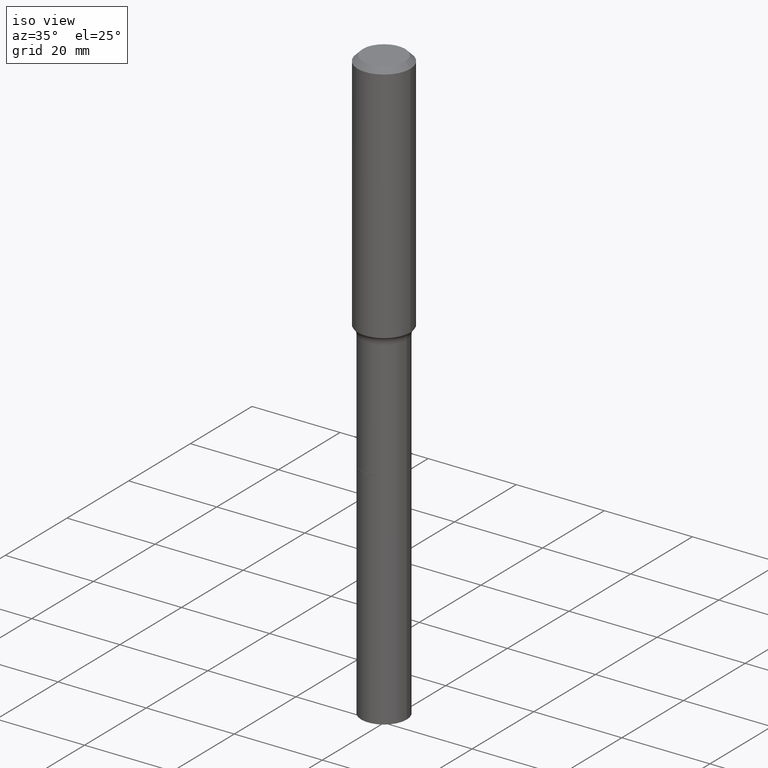
[diagram: clean part render]
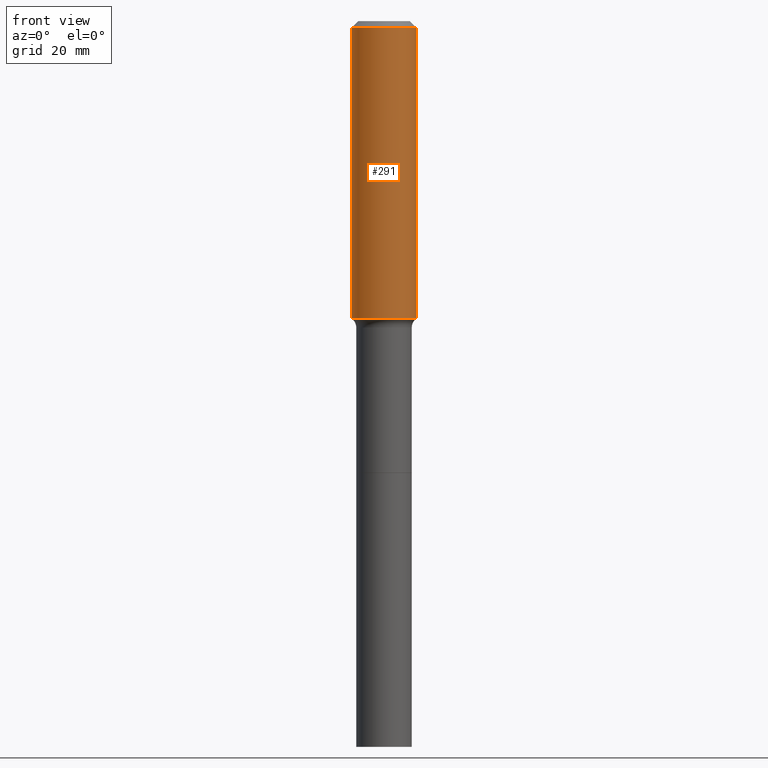
[diagram: tour spotlight — one face highlighted and labeled with its STEP entity id]
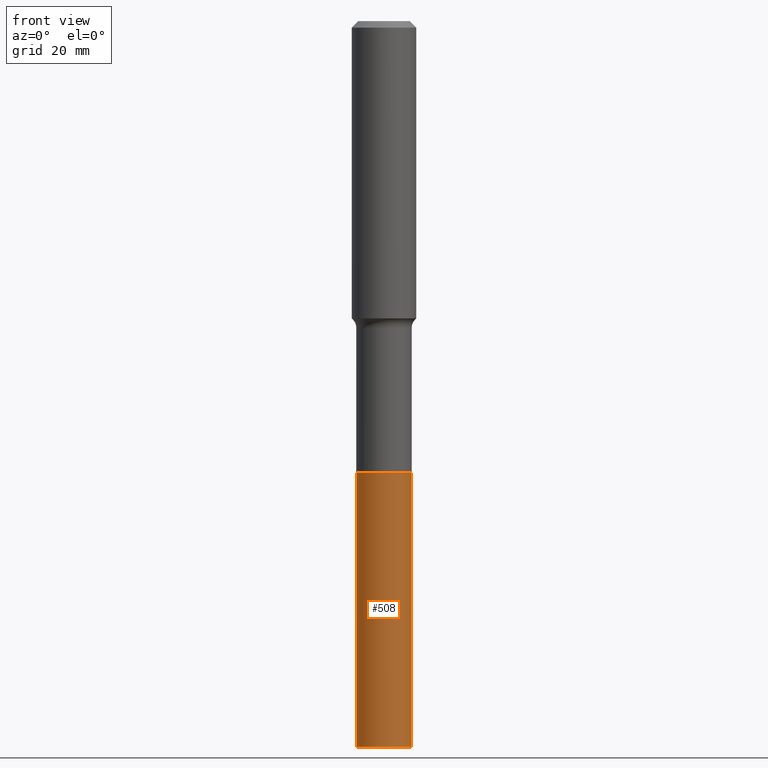
[diagram: tour spotlight — one face highlighted and labeled with its STEP entity id]
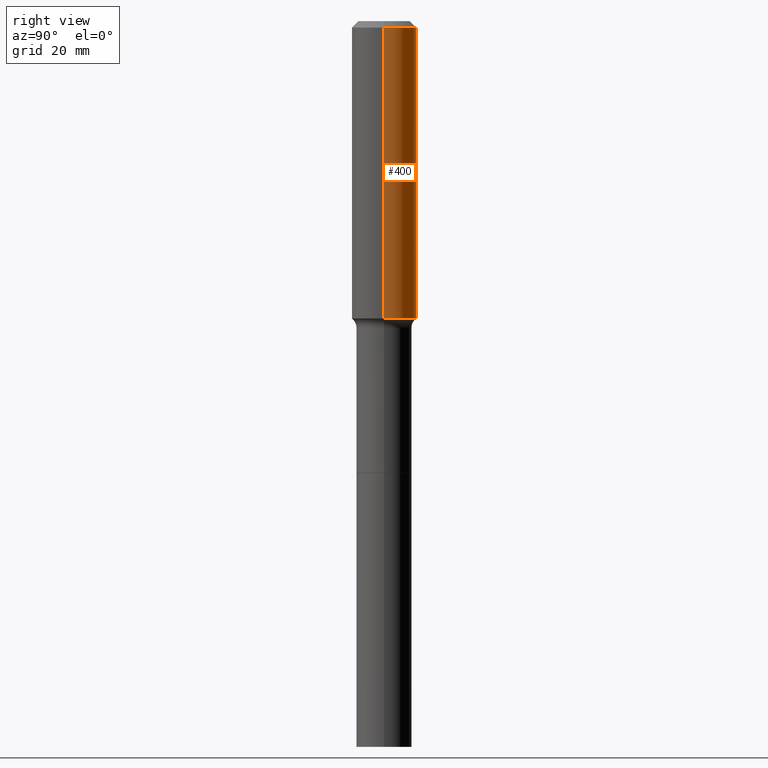
[diagram: tour spotlight — one face highlighted and labeled with its STEP entity id]
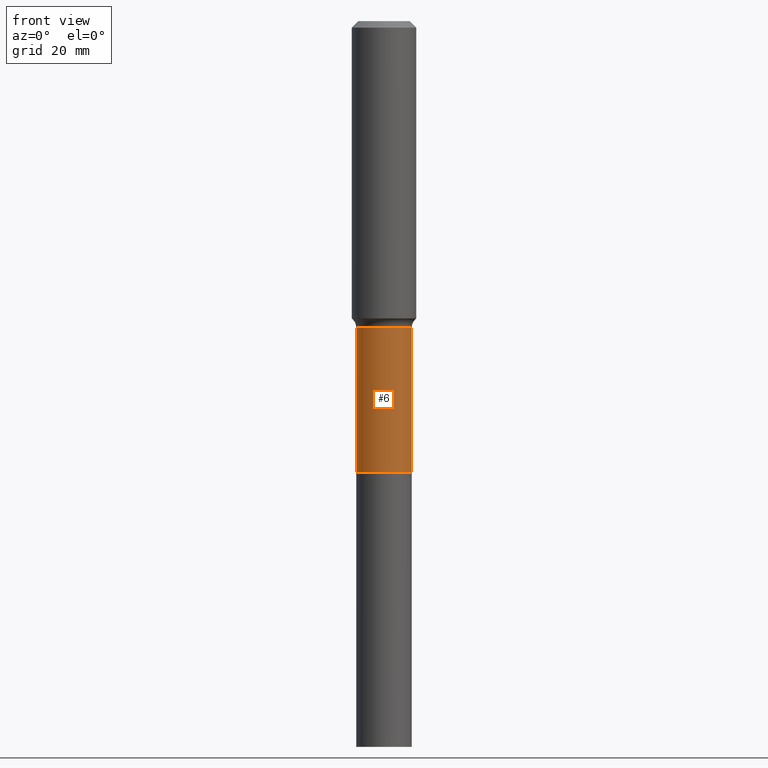
[diagram: tour spotlight — one face highlighted and labeled with its STEP entity id]
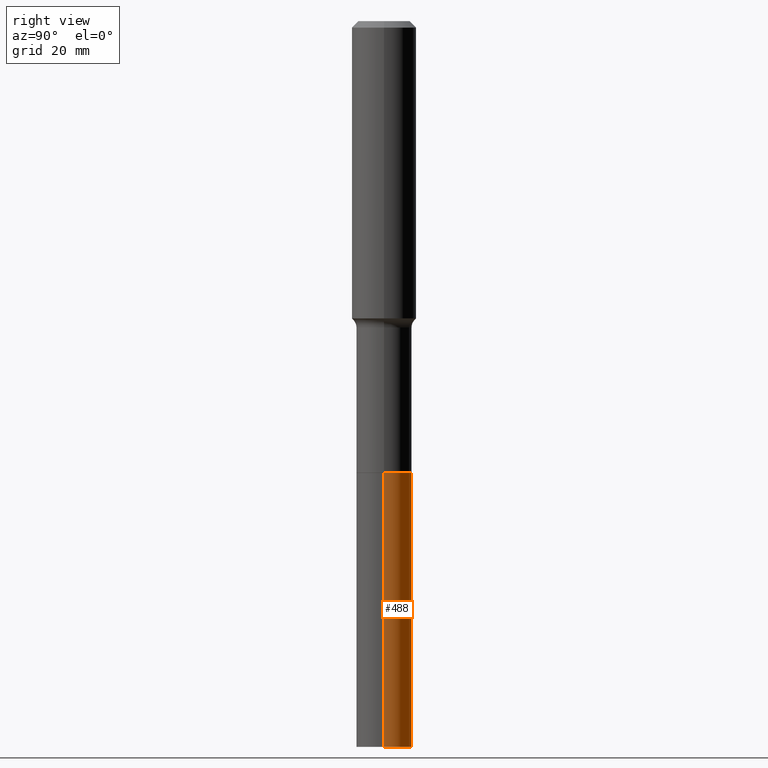
[diagram: tour spotlight — one face highlighted and labeled with its STEP entity id]
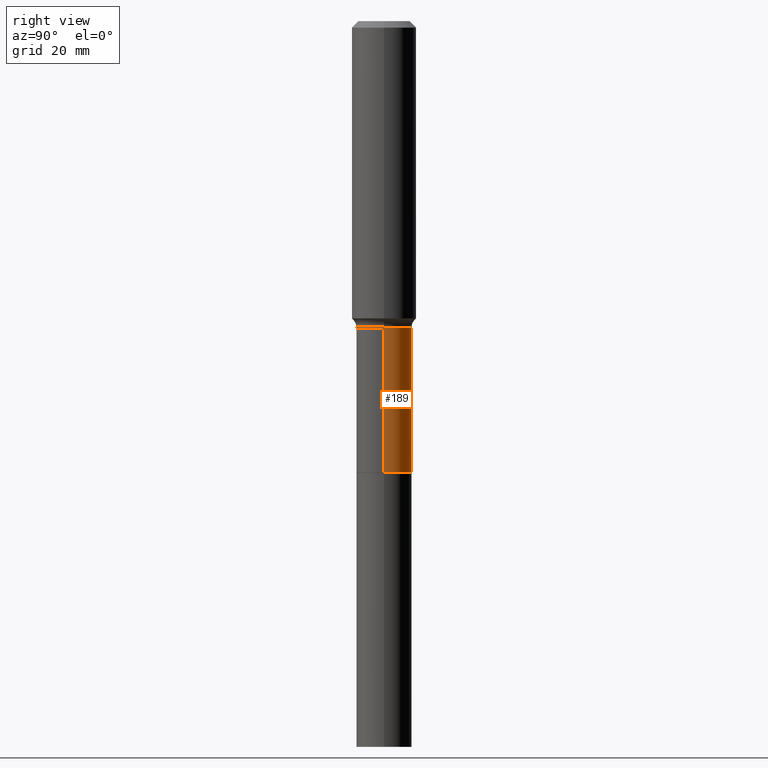
[diagram: tour spotlight — one face highlighted and labeled with its STEP entity id]
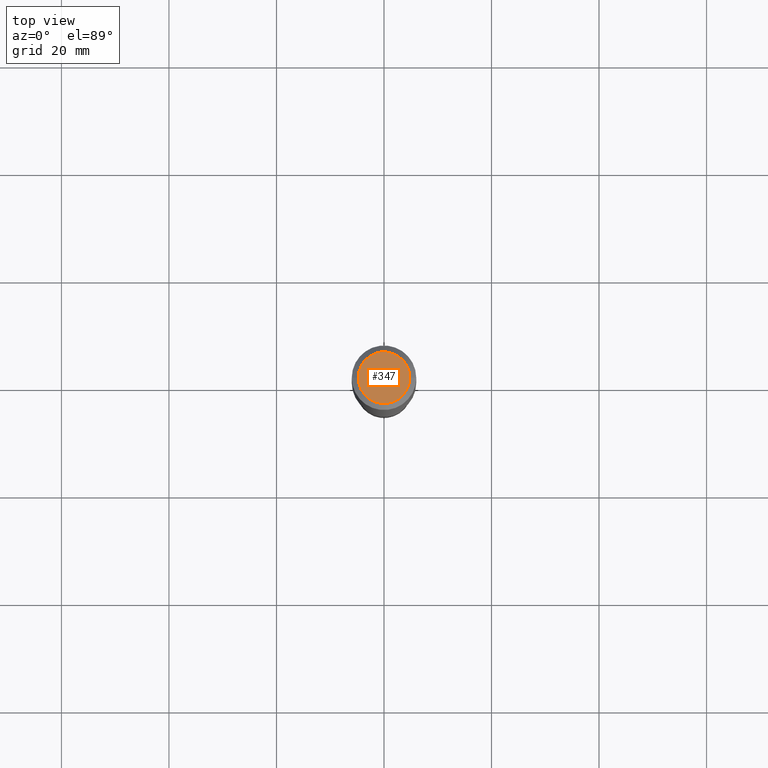
[diagram: tour spotlight — one face highlighted and labeled with its STEP entity id]
A machine part: a face-by-face anatomy tour. The part has 18 B-rep faces; the first image is the clean iso view, then the 7 largest visible faces are spotlighted one at a time (largest first), each with its STEP entity span.

Face 1 — front view, entity #291. In plain terms, the highlighted cylindrical surface (edge-blend (fillet) strip) has radius 5.9995 mm, axis along (-0, 0, 1).
Definition (entity closure, byte-faithful):
#17 = FACE_OUTER_BOUND ( 'NONE', #31, .T. ) ;
#31 = EDGE_LOOP ( 'NONE', ( #297, #210, #415, #454 ) ) ;
#52 = AXIS2_PLACEMENT_3D ( 'NONE', #322, #192, #356 ) ;
#67 = EDGE_CURVE ( 'NONE', #499, #251, #267, .T. ) ;
#74 = EDGE_CURVE ( 'NONE', #383, #324, #390, .T. ) ;
#78 = CARTESIAN_POINT ( 'NONE',  ( -0.2362000000000001321, 1.678301941865357577E-15, -1.161852468318209457E-29 ) ) ;
#97 = CARTESIAN_POINT ( 'NONE',  ( 0.2361999999999999933, -1.814313362916447440E-15, -0.04724000000000030258 ) ) ;
#113 = AXIS2_PLACEMENT_3D ( 'NONE', #186, #177, #511 ) ;
#120 = EDGE_CURVE ( 'NONE', #324, #251, #280, .T. ) ;
#122 = VECTOR ( 'NONE', #227, 39.37007874015748143 ) ;
#134 = VECTOR ( 'NONE', #442, 39.37007874015748143 ) ;
#156 = DIRECTION ( 'NONE',  ( 1.000000000000000000, -6.982962677686266711E-15, 4.876176775795936353E-29 ) ) ;
#177 = DIRECTION ( 'NONE',  ( -2.445468806185136597E-29, 3.491481338843145583E-15, 1.000000000000000000 ) ) ;
#186 = CARTESIAN_POINT ( 'NONE',  ( 1.155239464041865857E-30, -1.649375784469512352E-16, -0.04724000000000030258 ) ) ;
#192 = DIRECTION ( 'NONE',  ( -2.445468806185136597E-29, 3.491481338843145583E-15, 1.000000000000000000 ) ) ;
#210 = ORIENTED_EDGE ( 'NONE', *, *, #308, .T. ) ;
#212 = CYLINDRICAL_SURFACE ( 'NONE', #443, 0.2362000000000001321 ) ;
#227 = DIRECTION ( 'NONE',  ( -2.445468806185136877E-29, 3.491481338843145188E-15, 1.000000000000000000 ) ) ;
#231 = CARTESIAN_POINT ( 'NONE',  ( -0.2361999999999999933, -2.204629895681507301E-15, -0.04724000000000030258 ) ) ;
#251 = VERTEX_POINT ( 'NONE', #97 ) ;
#267 = LINE ( 'NONE', #397, #122 ) ;
#274 = DIRECTION ( 'NONE',  ( -2.445468806185136597E-29, 3.491481338843145583E-15, 1.000000000000000000 ) ) ;
#280 = CIRCLE ( 'NONE', #113, 0.2361999999999999933 ) ;
#291 = ADVANCED_FACE ( 'NONE', ( #17 ), #212, .T. ) ;
#297 = ORIENTED_EDGE ( 'NONE', *, *, #74, .F. ) ;
#308 = EDGE_CURVE ( 'NONE', #383, #499, #333, .T. ) ;
#322 = CARTESIAN_POINT ( 'NONE',  ( 5.323765434652751771E-29, -7.600926096646780419E-15, -2.176991757648987669 ) ) ;
#324 = VERTEX_POINT ( 'NONE', #231 ) ;
#333 = CIRCLE ( 'NONE', #52, 0.2362000000000002709 ) ;
#356 = DIRECTION ( 'NONE',  ( 1.000000000000000000, -6.982962677686269077E-15, 0.000000000000000000 ) ) ;
#377 = CARTESIAN_POINT ( 'NONE',  ( 0.000000000000000000, 0.000000000000000000, 0.000000000000000000 ) ) ;
#383 = VERTEX_POINT ( 'NONE', #453 ) ;
#390 = LINE ( 'NONE', #78, #134 ) ;
#397 = CARTESIAN_POINT ( 'NONE',  ( 0.2362000000000001321, -1.649375784469497117E-15, 1.151752954443000789E-29 ) ) ;
#415 = ORIENTED_EDGE ( 'NONE', *, *, #67, .T. ) ;
#428 = CARTESIAN_POINT ( 'NONE',  ( 0.2362000000000002709, -9.250301881116278522E-15, -2.176991757648987669 ) ) ;
#442 = DIRECTION ( 'NONE',  ( -2.445468806185136877E-29, 3.491481338843145188E-15, 1.000000000000000000 ) ) ;
#443 = AXIS2_PLACEMENT_3D ( 'NONE', #377, #274, #156 ) ;
#453 = CARTESIAN_POINT ( 'NONE',  ( -0.2362000000000002709, -5.922624154781422447E-15, -2.176991757648987669 ) ) ;
#454 = ORIENTED_EDGE ( 'NONE', *, *, #120, .F. ) ;
#499 = VERTEX_POINT ( 'NONE', #428 ) ;
#511 = DIRECTION ( 'NONE',  ( 1.000000000000000000, -6.982962677686266711E-15, 0.000000000000000000 ) ) ;

Face 2 — front view, entity #508. In plain terms, the highlighted cylindrical surface (edge-blend (fillet) strip) has radius 5.1587 mm, axis along (-0, 0, 1).
Definition (entity closure, byte-faithful):
#24 = EDGE_CURVE ( 'NONE', #56, #204, #495, .T. ) ;
#32 = DIRECTION ( 'NONE',  ( -2.445468806185136597E-29, 3.491481338843145583E-15, 1.000000000000000000 ) ) ;
#51 = ORIENTED_EDGE ( 'NONE', *, *, #24, .T. ) ;
#56 = VERTEX_POINT ( 'NONE', #375 ) ;
#57 = CARTESIAN_POINT ( 'NONE',  ( 1.299766670487400218E-28, -1.855722331595131973E-14, -5.315000000000000391 ) ) ;
#89 = ORIENTED_EDGE ( 'NONE', *, *, #487, .F. ) ;
#90 = ORIENTED_EDGE ( 'NONE', *, *, #121, .F. ) ;
#108 = FACE_OUTER_BOUND ( 'NONE', #378, .T. ) ;
#117 = DIRECTION ( 'NONE',  ( 1.000000000000000000, -6.982962677686264344E-15, 0.000000000000000000 ) ) ;
#121 = EDGE_CURVE ( 'NONE', #172, #166, #234, .T. ) ;
#132 = ORIENTED_EDGE ( 'NONE', *, *, #447, .T. ) ;
#133 = AXIS2_PLACEMENT_3D ( 'NONE', #475, #32, #232 ) ;
#146 = LINE ( 'NONE', #355, #418 ) ;
#148 = DIRECTION ( 'NONE',  ( -2.445468806185136877E-29, 3.491481338843145188E-15, 1.000000000000000000 ) ) ;
#151 = AXIS2_PLACEMENT_3D ( 'NONE', #312, #277, #117 ) ;
#159 = CARTESIAN_POINT ( 'NONE',  ( 0.2031000000000000028, -1.296456850739236371E-14, -3.307000000000000384 ) ) ;
#166 = VERTEX_POINT ( 'NONE', #159 ) ;
#172 = VERTEX_POINT ( 'NONE', #474 ) ;
#204 = VERTEX_POINT ( 'NONE', #325 ) ;
#222 = DIRECTION ( 'NONE',  ( 1.000000000000000000, -6.982962677686261977E-15, 0.000000000000000000 ) ) ;
#232 = DIRECTION ( 'NONE',  ( 1.000000000000000000, -6.982962677686267499E-15, 0.000000000000000000 ) ) ;
#234 = CIRCLE ( 'NONE', #151, 0.2031000000000000028 ) ;
#243 = LINE ( 'NONE', #364, #496 ) ;
#269 = CYLINDRICAL_SURFACE ( 'NONE', #133, 0.2031000000000001970 ) ;
#277 = DIRECTION ( 'NONE',  ( -2.445468806185136597E-29, 3.491481338843145583E-15, 1.000000000000000000 ) ) ;
#287 = AXIS2_PLACEMENT_3D ( 'NONE', #57, #461, #222 ) ;
#312 = CARTESIAN_POINT ( 'NONE',  ( 8.087165342054247524E-29, -1.154632878755428372E-14, -3.307000000000000384 ) ) ;
#325 = CARTESIAN_POINT ( 'NONE',  ( 0.2031000000000003636, -1.997546303578940445E-14, -5.315000000000000391 ) ) ;
#355 = CARTESIAN_POINT ( 'NONE',  ( -0.2031000000000001970, -1.010321649122551983E-14, -3.307000000000000384 ) ) ;
#364 = CARTESIAN_POINT ( 'NONE',  ( 0.2031000000000001970, -1.296456850739236686E-14, -3.307000000000000384 ) ) ;
#375 = CARTESIAN_POINT ( 'NONE',  ( -0.2031000000000003636, -1.360866375542403310E-14, -5.315000000000000391 ) ) ;
#378 = EDGE_LOOP ( 'NONE', ( #89, #51, #132, #90 ) ) ;
#418 = VECTOR ( 'NONE', #463, 39.37007874015748143 ) ;
#447 = EDGE_CURVE ( 'NONE', #204, #166, #243, .T. ) ;
#461 = DIRECTION ( 'NONE',  ( -2.445468806185136597E-29, 3.491481338843145583E-15, 1.000000000000000000 ) ) ;
#463 = DIRECTION ( 'NONE',  ( -2.445468806185136877E-29, 3.491481338843145188E-15, 1.000000000000000000 ) ) ;
#474 = CARTESIAN_POINT ( 'NONE',  ( -0.2031000000000000028, -1.360866375542403783E-14, -3.307000000000000384 ) ) ;
#475 = CARTESIAN_POINT ( 'NONE',  ( 8.087165342054247524E-29, -1.154632878755428372E-14, -3.307000000000000384 ) ) ;
#487 = EDGE_CURVE ( 'NONE', #56, #172, #146, .T. ) ;
#495 = CIRCLE ( 'NONE', #287, 0.2031000000000003636 ) ;
#496 = VECTOR ( 'NONE', #148, 39.37007874015748143 ) ;
#508 = ADVANCED_FACE ( 'NONE', ( #108 ), #269, .T. ) ;

Face 3 — right view, entity #400. In plain terms, the highlighted cylindrical surface (edge-blend (fillet) strip) has radius 5.9995 mm, axis along (-0, 0, 1).
Definition (entity closure, byte-faithful):
#67 = EDGE_CURVE ( 'NONE', #499, #251, #267, .T. ) ;
#74 = EDGE_CURVE ( 'NONE', #383, #324, #390, .T. ) ;
#78 = CARTESIAN_POINT ( 'NONE',  ( -0.2362000000000001321, 1.678301941865357577E-15, -1.161852468318209457E-29 ) ) ;
#80 = AXIS2_PLACEMENT_3D ( 'NONE', #440, #124, #441 ) ;
#93 = CIRCLE ( 'NONE', #353, 0.2362000000000002709 ) ;
#97 = CARTESIAN_POINT ( 'NONE',  ( 0.2361999999999999933, -1.814313362916447440E-15, -0.04724000000000030258 ) ) ;
#98 = ORIENTED_EDGE ( 'NONE', *, *, #67, .F. ) ;
#122 = VECTOR ( 'NONE', #227, 39.37007874015748143 ) ;
#124 = DIRECTION ( 'NONE',  ( -2.445468806185136597E-29, 3.491481338843145583E-15, 1.000000000000000000 ) ) ;
#130 = ORIENTED_EDGE ( 'NONE', *, *, #74, .T. ) ;
#134 = VECTOR ( 'NONE', #442, 39.37007874015748143 ) ;
#137 = ORIENTED_EDGE ( 'NONE', *, *, #326, .F. ) ;
#158 = DIRECTION ( 'NONE',  ( 1.000000000000000000, -6.982962677686269077E-15, 0.000000000000000000 ) ) ;
#202 = CARTESIAN_POINT ( 'NONE',  ( 0.000000000000000000, 0.000000000000000000, 0.000000000000000000 ) ) ;
#207 = DIRECTION ( 'NONE',  ( 1.000000000000000000, -6.982962677686266711E-15, 4.876176775795936353E-29 ) ) ;
#227 = DIRECTION ( 'NONE',  ( -2.445468806185136877E-29, 3.491481338843145188E-15, 1.000000000000000000 ) ) ;
#231 = CARTESIAN_POINT ( 'NONE',  ( -0.2361999999999999933, -2.204629895681507301E-15, -0.04724000000000030258 ) ) ;
#239 = AXIS2_PLACEMENT_3D ( 'NONE', #202, #367, #207 ) ;
#251 = VERTEX_POINT ( 'NONE', #97 ) ;
#253 = EDGE_LOOP ( 'NONE', ( #329, #130, #137, #98 ) ) ;
#267 = LINE ( 'NONE', #397, #122 ) ;
#305 = CIRCLE ( 'NONE', #80, 0.2361999999999999933 ) ;
#307 = EDGE_CURVE ( 'NONE', #499, #383, #93, .T. ) ;
#324 = VERTEX_POINT ( 'NONE', #231 ) ;
#326 = EDGE_CURVE ( 'NONE', #251, #324, #305, .T. ) ;
#329 = ORIENTED_EDGE ( 'NONE', *, *, #307, .T. ) ;
#353 = AXIS2_PLACEMENT_3D ( 'NONE', #518, #401, #158 ) ;
#367 = DIRECTION ( 'NONE',  ( -2.445468806185136597E-29, 3.491481338843145583E-15, 1.000000000000000000 ) ) ;
#383 = VERTEX_POINT ( 'NONE', #453 ) ;
#390 = LINE ( 'NONE', #78, #134 ) ;
#397 = CARTESIAN_POINT ( 'NONE',  ( 0.2362000000000001321, -1.649375784469497117E-15, 1.151752954443000789E-29 ) ) ;
#400 = ADVANCED_FACE ( 'NONE', ( #407 ), #404, .T. ) ;
#401 = DIRECTION ( 'NONE',  ( -2.445468806185136597E-29, 3.491481338843145583E-15, 1.000000000000000000 ) ) ;
#404 = CYLINDRICAL_SURFACE ( 'NONE', #239, 0.2362000000000001321 ) ;
#407 = FACE_OUTER_BOUND ( 'NONE', #253, .T. ) ;
#428 = CARTESIAN_POINT ( 'NONE',  ( 0.2362000000000002709, -9.250301881116278522E-15, -2.176991757648987669 ) ) ;
#440 = CARTESIAN_POINT ( 'NONE',  ( 1.155239464041865857E-30, -1.649375784469512352E-16, -0.04724000000000030258 ) ) ;
#441 = DIRECTION ( 'NONE',  ( 1.000000000000000000, -6.982962677686266711E-15, 0.000000000000000000 ) ) ;
#442 = DIRECTION ( 'NONE',  ( -2.445468806185136877E-29, 3.491481338843145188E-15, 1.000000000000000000 ) ) ;
#453 = CARTESIAN_POINT ( 'NONE',  ( -0.2362000000000002709, -5.922624154781422447E-15, -2.176991757648987669 ) ) ;
#499 = VERTEX_POINT ( 'NONE', #428 ) ;
#518 = CARTESIAN_POINT ( 'NONE',  ( 5.323765434652751771E-29, -7.600926096646780419E-15, -2.176991757648987669 ) ) ;

Face 4 — front view, entity #6. In plain terms, the highlighted cylindrical surface (edge-blend (fillet) strip) has radius 5.1587 mm, axis along (-0, 0, 1).
Definition (entity closure, byte-faithful):
#6 = ADVANCED_FACE ( 'NONE', ( #219 ), #54, .T. ) ;
#11 = LINE ( 'NONE', #296, #63 ) ;
#37 = CARTESIAN_POINT ( 'NONE',  ( 8.085942607651154722E-29, -1.154458304688486143E-14, -3.306500000000000217 ) ) ;
#46 = CARTESIAN_POINT ( 'NONE',  ( -0.2030999999999999750, -8.246621289295675448E-15, -3.306500000000000217 ) ) ;
#47 = EDGE_CURVE ( 'NONE', #371, #337, #259, .T. ) ;
#48 = EDGE_CURVE ( 'NONE', #411, #493, #11, .T. ) ;
#54 = CYLINDRICAL_SURFACE ( 'NONE', #193, 0.2030999999999999472 ) ;
#60 = CARTESIAN_POINT ( 'NONE',  ( -0.2030999999999999472, 1.443112296328763103E-15, -9.990357168307711400E-30 ) ) ;
#63 = VECTOR ( 'NONE', #449, 39.37007874015748143 ) ;
#72 = AXIS2_PLACEMENT_3D ( 'NONE', #37, #510, #352 ) ;
#106 = AXIS2_PLACEMENT_3D ( 'NONE', #343, #350, #423 ) ;
#107 = DIRECTION ( 'NONE',  ( -2.445468806185136877E-29, 3.491481338843145188E-15, 1.000000000000000000 ) ) ;
#128 = CARTESIAN_POINT ( 'NONE',  ( 0.2030999999999999750, -1.296282276672294141E-14, -3.306500000000000217 ) ) ;
#129 = EDGE_LOOP ( 'NONE', ( #303, #164, #330, #141 ) ) ;
#138 = EDGE_CURVE ( 'NONE', #337, #493, #298, .T. ) ;
#141 = ORIENTED_EDGE ( 'NONE', *, *, #138, .F. ) ;
#164 = ORIENTED_EDGE ( 'NONE', *, *, #230, .T. ) ;
#193 = AXIS2_PLACEMENT_3D ( 'NONE', #208, #372, #503 ) ;
#208 = CARTESIAN_POINT ( 'NONE',  ( 0.000000000000000000, 0.000000000000000000, 0.000000000000000000 ) ) ;
#219 = FACE_OUTER_BOUND ( 'NONE', #129, .T. ) ;
#230 = EDGE_CURVE ( 'NONE', #371, #411, #342, .T. ) ;
#259 = LINE ( 'NONE', #60, #272 ) ;
#272 = VECTOR ( 'NONE', #107, 39.37007874015748143 ) ;
#278 = CARTESIAN_POINT ( 'NONE',  ( -0.2030999999999998640, -8.246621289295677025E-15, -2.244000000000000217 ) ) ;
#296 = CARTESIAN_POINT ( 'NONE',  ( 0.2030999999999999472, -1.418239719838080381E-15, 9.903515031641543342E-30 ) ) ;
#298 = CIRCLE ( 'NONE', #106, 0.2030999999999998640 ) ;
#303 = ORIENTED_EDGE ( 'NONE', *, *, #47, .F. ) ;
#330 = ORIENTED_EDGE ( 'NONE', *, *, #48, .T. ) ;
#337 = VERTEX_POINT ( 'NONE', #278 ) ;
#342 = CIRCLE ( 'NONE', #72, 0.2030999999999999750 ) ;
#343 = CARTESIAN_POINT ( 'NONE',  ( 5.487632001079447088E-29, -7.834884124364020406E-15, -2.244000000000000217 ) ) ;
#350 = DIRECTION ( 'NONE',  ( -2.445468806185136597E-29, 3.491481338843145583E-15, 1.000000000000000000 ) ) ;
#352 = DIRECTION ( 'NONE',  ( 1.000000000000000000, -6.982962677686265922E-15, 0.000000000000000000 ) ) ;
#371 = VERTEX_POINT ( 'NONE', #46 ) ;
#372 = DIRECTION ( 'NONE',  ( -2.445468806185136597E-29, 3.491481338843145583E-15, 1.000000000000000000 ) ) ;
#392 = CARTESIAN_POINT ( 'NONE',  ( 0.2030999999999998640, -9.253123844202098814E-15, -2.244000000000000217 ) ) ;
#411 = VERTEX_POINT ( 'NONE', #128 ) ;
#423 = DIRECTION ( 'NONE',  ( 1.000000000000000000, -6.982962677686264344E-15, 0.000000000000000000 ) ) ;
#449 = DIRECTION ( 'NONE',  ( -2.445468806185136877E-29, 3.491481338843145188E-15, 1.000000000000000000 ) ) ;
#493 = VERTEX_POINT ( 'NONE', #392 ) ;
#503 = DIRECTION ( 'NONE',  ( 1.000000000000000000, -6.982962677686266711E-15, 4.876176775795935793E-29 ) ) ;
#510 = DIRECTION ( 'NONE',  ( -2.445468806185136597E-29, 3.491481338843145583E-15, 1.000000000000000000 ) ) ;

Face 5 — right view, entity #488. In plain terms, the highlighted cylindrical surface (edge-blend (fillet) strip) has radius 5.1587 mm, axis along (-0, 0, 1).
Definition (entity closure, byte-faithful):
#7 = CIRCLE ( 'NONE', #379, 0.2031000000000003636 ) ;
#15 = DIRECTION ( 'NONE',  ( -2.445468806185136597E-29, 3.491481338843145583E-15, 1.000000000000000000 ) ) ;
#56 = VERTEX_POINT ( 'NONE', #375 ) ;
#68 = FACE_OUTER_BOUND ( 'NONE', #386, .T. ) ;
#111 = CYLINDRICAL_SURFACE ( 'NONE', #187, 0.2031000000000001970 ) ;
#143 = AXIS2_PLACEMENT_3D ( 'NONE', #198, #15, #414 ) ;
#146 = LINE ( 'NONE', #355, #418 ) ;
#148 = DIRECTION ( 'NONE',  ( -2.445468806185136877E-29, 3.491481338843145188E-15, 1.000000000000000000 ) ) ;
#159 = CARTESIAN_POINT ( 'NONE',  ( 0.2031000000000000028, -1.296456850739236371E-14, -3.307000000000000384 ) ) ;
#166 = VERTEX_POINT ( 'NONE', #159 ) ;
#172 = VERTEX_POINT ( 'NONE', #474 ) ;
#183 = ORIENTED_EDGE ( 'NONE', *, *, #487, .T. ) ;
#187 = AXIS2_PLACEMENT_3D ( 'NONE', #517, #388, #394 ) ;
#198 = CARTESIAN_POINT ( 'NONE',  ( 8.087165342054247524E-29, -1.154632878755428372E-14, -3.307000000000000384 ) ) ;
#204 = VERTEX_POINT ( 'NONE', #325 ) ;
#242 = DIRECTION ( 'NONE',  ( 1.000000000000000000, -6.982962677686261977E-15, 0.000000000000000000 ) ) ;
#243 = LINE ( 'NONE', #364, #496 ) ;
#247 = CIRCLE ( 'NONE', #143, 0.2031000000000000028 ) ;
#264 = EDGE_CURVE ( 'NONE', #204, #56, #7, .T. ) ;
#289 = CARTESIAN_POINT ( 'NONE',  ( 1.299766670487400218E-28, -1.855722331595131973E-14, -5.315000000000000391 ) ) ;
#301 = ORIENTED_EDGE ( 'NONE', *, *, #264, .T. ) ;
#306 = ORIENTED_EDGE ( 'NONE', *, *, #447, .F. ) ;
#325 = CARTESIAN_POINT ( 'NONE',  ( 0.2031000000000003636, -1.997546303578940445E-14, -5.315000000000000391 ) ) ;
#355 = CARTESIAN_POINT ( 'NONE',  ( -0.2031000000000001970, -1.010321649122551983E-14, -3.307000000000000384 ) ) ;
#361 = DIRECTION ( 'NONE',  ( -2.445468806185136597E-29, 3.491481338843145583E-15, 1.000000000000000000 ) ) ;
#364 = CARTESIAN_POINT ( 'NONE',  ( 0.2031000000000001970, -1.296456850739236686E-14, -3.307000000000000384 ) ) ;
#375 = CARTESIAN_POINT ( 'NONE',  ( -0.2031000000000003636, -1.360866375542403310E-14, -5.315000000000000391 ) ) ;
#379 = AXIS2_PLACEMENT_3D ( 'NONE', #289, #361, #242 ) ;
#386 = EDGE_LOOP ( 'NONE', ( #301, #183, #500, #306 ) ) ;
#388 = DIRECTION ( 'NONE',  ( -2.445468806185136597E-29, 3.491481338843145583E-15, 1.000000000000000000 ) ) ;
#394 = DIRECTION ( 'NONE',  ( 1.000000000000000000, -6.982962677686267499E-15, 0.000000000000000000 ) ) ;
#414 = DIRECTION ( 'NONE',  ( 1.000000000000000000, -6.982962677686264344E-15, 0.000000000000000000 ) ) ;
#418 = VECTOR ( 'NONE', #463, 39.37007874015748143 ) ;
#433 = EDGE_CURVE ( 'NONE', #166, #172, #247, .T. ) ;
#447 = EDGE_CURVE ( 'NONE', #204, #166, #243, .T. ) ;
#463 = DIRECTION ( 'NONE',  ( -2.445468806185136877E-29, 3.491481338843145188E-15, 1.000000000000000000 ) ) ;
#474 = CARTESIAN_POINT ( 'NONE',  ( -0.2031000000000000028, -1.360866375542403783E-14, -3.307000000000000384 ) ) ;
#487 = EDGE_CURVE ( 'NONE', #56, #172, #146, .T. ) ;
#488 = ADVANCED_FACE ( 'NONE', ( #68 ), #111, .T. ) ;
#496 = VECTOR ( 'NONE', #148, 39.37007874015748143 ) ;
#500 = ORIENTED_EDGE ( 'NONE', *, *, #433, .F. ) ;
#517 = CARTESIAN_POINT ( 'NONE',  ( 8.087165342054247524E-29, -1.154632878755428372E-14, -3.307000000000000384 ) ) ;

Face 6 — right view, entity #189. In plain terms, the highlighted cylindrical surface (edge-blend (fillet) strip) has radius 5.1587 mm, axis along (-0, 0, 1).
Definition (entity closure, byte-faithful):
#1 = AXIS2_PLACEMENT_3D ( 'NONE', #25, #315, #224 ) ;
#11 = LINE ( 'NONE', #296, #63 ) ;
#13 = EDGE_LOOP ( 'NONE', ( #116, #19, #299, #334 ) ) ;
#19 = ORIENTED_EDGE ( 'NONE', *, *, #47, .T. ) ;
#25 = CARTESIAN_POINT ( 'NONE',  ( 0.000000000000000000, 0.000000000000000000, 0.000000000000000000 ) ) ;
#27 = AXIS2_PLACEMENT_3D ( 'NONE', #354, #516, #196 ) ;
#44 = DIRECTION ( 'NONE',  ( 1.000000000000000000, -6.982962677686265922E-15, 0.000000000000000000 ) ) ;
#46 = CARTESIAN_POINT ( 'NONE',  ( -0.2030999999999999750, -8.246621289295675448E-15, -3.306500000000000217 ) ) ;
#47 = EDGE_CURVE ( 'NONE', #371, #337, #259, .T. ) ;
#48 = EDGE_CURVE ( 'NONE', #411, #493, #11, .T. ) ;
#60 = CARTESIAN_POINT ( 'NONE',  ( -0.2030999999999999472, 1.443112296328763103E-15, -9.990357168307711400E-30 ) ) ;
#63 = VECTOR ( 'NONE', #449, 39.37007874015748143 ) ;
#83 = CARTESIAN_POINT ( 'NONE',  ( 8.085942607651154722E-29, -1.154458304688486143E-14, -3.306500000000000217 ) ) ;
#107 = DIRECTION ( 'NONE',  ( -2.445468806185136877E-29, 3.491481338843145188E-15, 1.000000000000000000 ) ) ;
#116 = ORIENTED_EDGE ( 'NONE', *, *, #338, .T. ) ;
#128 = CARTESIAN_POINT ( 'NONE',  ( 0.2030999999999999750, -1.296282276672294141E-14, -3.306500000000000217 ) ) ;
#150 = CYLINDRICAL_SURFACE ( 'NONE', #1, 0.2030999999999999472 ) ;
#189 = ADVANCED_FACE ( 'NONE', ( #432 ), #150, .T. ) ;
#196 = DIRECTION ( 'NONE',  ( 1.000000000000000000, -6.982962677686264344E-15, 0.000000000000000000 ) ) ;
#224 = DIRECTION ( 'NONE',  ( 1.000000000000000000, -6.982962677686266711E-15, 4.876176775795935793E-29 ) ) ;
#259 = LINE ( 'NONE', #60, #272 ) ;
#272 = VECTOR ( 'NONE', #107, 39.37007874015748143 ) ;
#278 = CARTESIAN_POINT ( 'NONE',  ( -0.2030999999999998640, -8.246621289295677025E-15, -2.244000000000000217 ) ) ;
#296 = CARTESIAN_POINT ( 'NONE',  ( 0.2030999999999999472, -1.418239719838080381E-15, 9.903515031641543342E-30 ) ) ;
#299 = ORIENTED_EDGE ( 'NONE', *, *, #339, .F. ) ;
#315 = DIRECTION ( 'NONE',  ( -2.445468806185136597E-29, 3.491481338843145583E-15, 1.000000000000000000 ) ) ;
#334 = ORIENTED_EDGE ( 'NONE', *, *, #48, .F. ) ;
#337 = VERTEX_POINT ( 'NONE', #278 ) ;
#338 = EDGE_CURVE ( 'NONE', #411, #371, #365, .T. ) ;
#339 = EDGE_CURVE ( 'NONE', #493, #337, #408, .T. ) ;
#354 = CARTESIAN_POINT ( 'NONE',  ( 5.487632001079447088E-29, -7.834884124364020406E-15, -2.244000000000000217 ) ) ;
#365 = CIRCLE ( 'NONE', #505, 0.2030999999999999750 ) ;
#371 = VERTEX_POINT ( 'NONE', #46 ) ;
#392 = CARTESIAN_POINT ( 'NONE',  ( 0.2030999999999998640, -9.253123844202098814E-15, -2.244000000000000217 ) ) ;
#402 = DIRECTION ( 'NONE',  ( -2.445468806185136597E-29, 3.491481338843145583E-15, 1.000000000000000000 ) ) ;
#408 = CIRCLE ( 'NONE', #27, 0.2030999999999998640 ) ;
#411 = VERTEX_POINT ( 'NONE', #128 ) ;
#432 = FACE_OUTER_BOUND ( 'NONE', #13, .T. ) ;
#449 = DIRECTION ( 'NONE',  ( -2.445468806185136877E-29, 3.491481338843145188E-15, 1.000000000000000000 ) ) ;
#493 = VERTEX_POINT ( 'NONE', #392 ) ;
#505 = AXIS2_PLACEMENT_3D ( 'NONE', #83, #402, #44 ) ;
#516 = DIRECTION ( 'NONE',  ( -2.445468806185136597E-29, 3.491481338843145583E-15, 1.000000000000000000 ) ) ;

Face 7 — top view, entity #347. In plain terms, the highlighted planar face has unit normal (0, -0, -1).
Definition (entity closure, byte-faithful):
#4 = PLANE ( 'NONE',  #323 ) ;
#16 = AXIS2_PLACEMENT_3D ( 'NONE', #252, #96, #255 ) ;
#38 = DIRECTION ( 'NONE',  ( 2.438088387897960049E-29, -3.491481338843145188E-15, -1.000000000000000000 ) ) ;
#59 = EDGE_LOOP ( 'NONE', ( #168, #70 ) ) ;
#70 = ORIENTED_EDGE ( 'NONE', *, *, #478, .T. ) ;
#96 = DIRECTION ( 'NONE',  ( -2.445468806185136597E-29, 3.491481338843145583E-15, 1.000000000000000000 ) ) ;
#102 = CARTESIAN_POINT ( 'NONE',  ( -9.427742298522546243E-47, 1.346031739168365344E-32, 3.855188123715862256E-18 ) ) ;
#123 = AXIS2_PLACEMENT_3D ( 'NONE', #102, #431, #190 ) ;
#154 = DIRECTION ( 'NONE',  ( -1.000000000000000000, 6.982962677686265922E-15, -4.876176775795935793E-29 ) ) ;
#168 = ORIENTED_EDGE ( 'NONE', *, *, #410, .T. ) ;
#190 = DIRECTION ( 'NONE',  ( 1.000000000000000000, -6.982962677686266711E-15, 4.876185090822587894E-29 ) ) ;
#252 = CARTESIAN_POINT ( 'NONE',  ( -9.427742298522546243E-47, 1.346031739168365344E-32, 3.855188123715862256E-18 ) ) ;
#254 = VERTEX_POINT ( 'NONE', #403 ) ;
#255 = DIRECTION ( 'NONE',  ( 1.000000000000000000, -6.982962677686266711E-15, 4.876185090822587894E-29 ) ) ;
#314 = CARTESIAN_POINT ( 'NONE',  ( 0.1889600000000000168, -1.540873453589747738E-15, 3.855188123725863225E-18 ) ) ;
#323 = AXIS2_PLACEMENT_3D ( 'NONE', #396, #38, #154 ) ;
#347 = ADVANCED_FACE ( 'NONE', ( #360 ), #4, .F. ) ;
#360 = FACE_OUTER_BOUND ( 'NONE', #59, .T. ) ;
#396 = CARTESIAN_POINT ( 'NONE',  ( -4.713871149261273121E-47, 6.730158695841826722E-33, 1.927594061857931128E-18 ) ) ;
#403 = CARTESIAN_POINT ( 'NONE',  ( -0.1889600000000000168, 1.401969416799070942E-15, 3.855188123706346622E-18 ) ) ;
#410 = EDGE_CURVE ( 'NONE', #254, #492, #473, .T. ) ;
#431 = DIRECTION ( 'NONE',  ( -2.445468806185136597E-29, 3.491481338843145583E-15, 1.000000000000000000 ) ) ;
#459 = CIRCLE ( 'NONE', #123, 0.1889600000000000168 ) ;
#473 = CIRCLE ( 'NONE', #16, 0.1889600000000000168 ) ;
#478 = EDGE_CURVE ( 'NONE', #492, #254, #459, .T. ) ;
#492 = VERTEX_POINT ( 'NONE', #314 ) ;